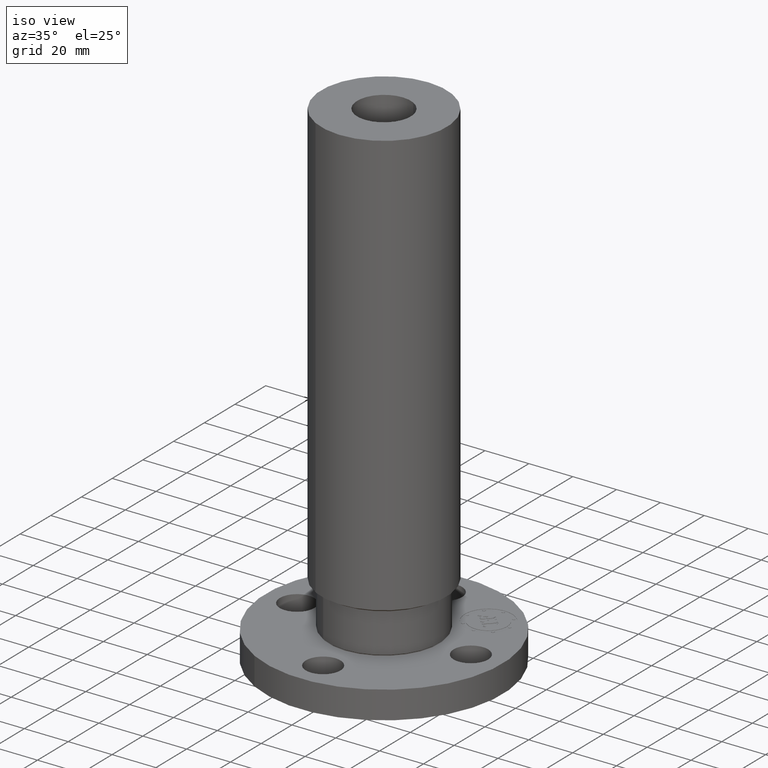
[diagram: clean part render]
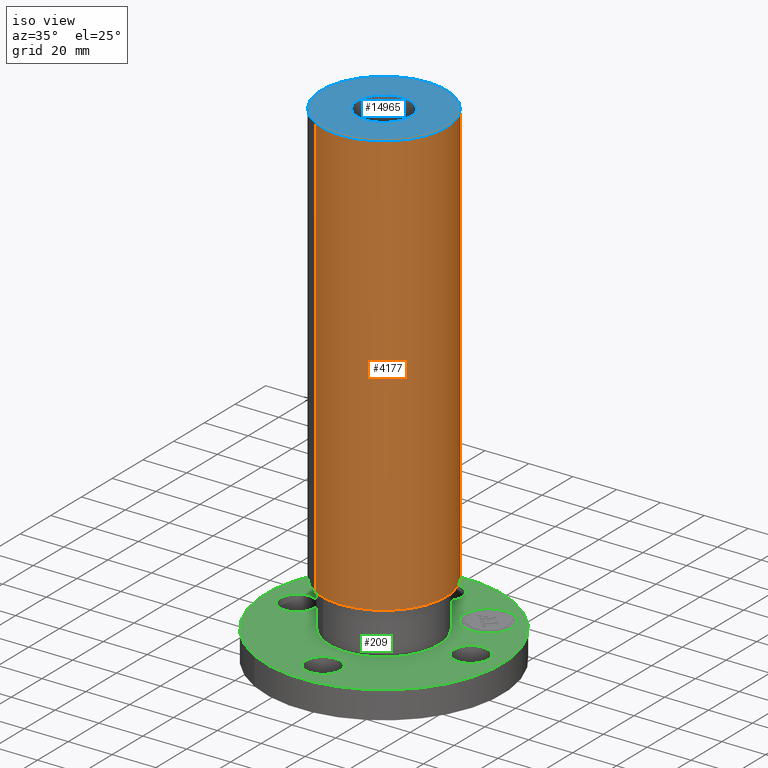
[diagram: same view with three faces highlighted in distinct colors, each labeled with its STEP entity id]
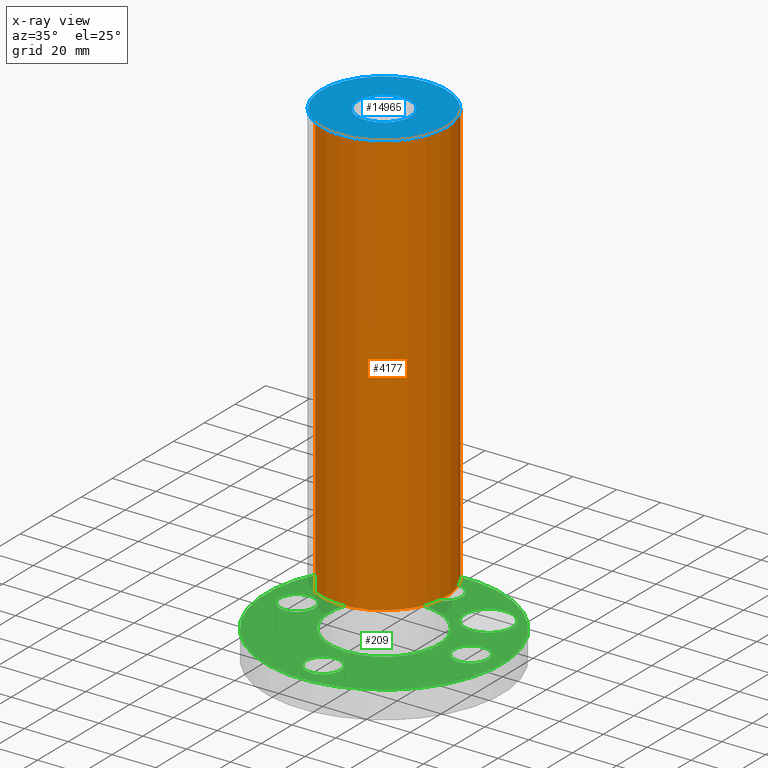
[diagram: x-ray of the same camera — body ghosted, the three highlighted faces saturated]
A machine part, iso view with three faces highlighted in distinct colors.
The next image is the same camera in x-ray (body ghosted, the three faces saturated) — at least one of them is partly hidden behind the body in this view.
Their STEP definitions:

[orange] entity #4177 — the highlighted cylindrical surface (partial cylindrical patch) has radius 28.575 mm, axis along (0, 0, -1).
#1275=AXIS2_PLACEMENT_3D('Circle Axis2P3D',#1273,#1274,$) ;
#4150=AXIS2_PLACEMENT_3D('Cylinder Axis2P3D',#4147,#4148,#4149) ;
#4161=AXIS2_PLACEMENT_3D('Circle Axis2P3D',#4159,#4160,$) ;
#1270=CARTESIAN_POINT('Vertex',(0.539353730932,0.987280382131,1.31966878365)) ;
#1273=CARTESIAN_POINT('Axis2P3D Location',(0.,0.,1.31966878365)) ;
#1277=CARTESIAN_POINT('Vertex',(-0.539353730932,-0.987280382131,1.31966878365)) ;
#4147=CARTESIAN_POINT('Axis2P3D Location',(0.,0.,4.43750000002)) ;
#4152=CARTESIAN_POINT('Line Origine',(0.539353730932,0.987280382131,5.12858439184)) ;
#4156=CARTESIAN_POINT('Vertex',(0.539353730932,0.987280382131,8.93750000004)) ;
#4159=CARTESIAN_POINT('Axis2P3D Location',(0.,0.,8.93750000004)) ;
#4163=CARTESIAN_POINT('Vertex',(-0.539353730932,-0.987280382131,8.93750000004)) ;
#4166=CARTESIAN_POINT('Line Origine',(-0.539353730932,-0.987280382131,5.12858439184)) ;
#1274=DIRECTION('Axis2P3D Direction',(-0.,0.,0.0393700787402)) ;
#4148=DIRECTION('Axis2P3D Direction',(0.,0.,-0.0393700787402)) ;
#4149=DIRECTION('Axis2P3D XDirection',(-0.0188750212049,-0.0345504945626,0.)) ;
#4153=DIRECTION('Vector Direction',(0.,0.,-0.0393700787402)) ;
#4160=DIRECTION('Axis2P3D Direction',(0.,0.,-0.0393700787402)) ;
#4167=DIRECTION('Vector Direction',(0.,0.,-0.0393700787402)) ;
#4154=VECTOR('Line Direction',#4153,0.0393700787402) ;
#4168=VECTOR('Line Direction',#4167,0.0393700787402) ;
#4172=ORIENTED_EDGE('',*,*,#1279,.F.) ;
#4173=ORIENTED_EDGE('',*,*,#4158,.T.) ;
#4174=ORIENTED_EDGE('',*,*,#4165,.T.) ;
#4175=ORIENTED_EDGE('',*,*,#4170,.F.) ;
#4177=ADVANCED_FACE('PartBody',(#4176),#4151,.T.) ;
#1276=CIRCLE('generated circle',#1275,1.125) ;
#4162=CIRCLE('generated circle',#4161,1.125) ;
#4151=CYLINDRICAL_SURFACE('generated cylinder',#4150,1.125) ;
#1279=EDGE_CURVE('',#1271,#1278,#1276,.F.) ;
#4158=EDGE_CURVE('',#1271,#4157,#4155,.F.) ;
#4165=EDGE_CURVE('',#4157,#4164,#4162,.T.) ;
#4170=EDGE_CURVE('',#1278,#4164,#4169,.F.) ;
#4171=EDGE_LOOP('',(#4172,#4173,#4174,#4175)) ;
#4176=FACE_OUTER_BOUND('',#4171,.T.) ;
#4155=LINE('Line',#4152,#4154) ;
#4169=LINE('Line',#4166,#4168) ;
#1271=VERTEX_POINT('',#1270) ;
#1278=VERTEX_POINT('',#1277) ;
#4157=VERTEX_POINT('',#4156) ;
#4164=VERTEX_POINT('',#4163) ;

[blue] entity #14965 — the highlighted planar face has unit normal (0, 0, -1).
#4161=AXIS2_PLACEMENT_3D('Circle Axis2P3D',#4159,#4160,$) ;
#4180=AXIS2_PLACEMENT_3D('Circle Axis2P3D',#4178,#4179,$) ;
#14941=AXIS2_PLACEMENT_3D('Plane Axis2P3D',#14938,#14939,#14940) ;
#14949=AXIS2_PLACEMENT_3D('Circle Axis2P3D',#14947,#14948,$) ;
#14958=AXIS2_PLACEMENT_3D('Circle Axis2P3D',#14956,#14957,$) ;
#4156=CARTESIAN_POINT('Vertex',(0.539353730932,0.987280382131,8.93750000004)) ;
#4159=CARTESIAN_POINT('Axis2P3D Location',(0.,0.,8.93750000004)) ;
#4163=CARTESIAN_POINT('Vertex',(-0.539353730932,-0.987280382131,8.93750000004)) ;
#4178=CARTESIAN_POINT('Axis2P3D Location',(0.,0.,8.93750000004)) ;
#14938=CARTESIAN_POINT('Axis2P3D Location',(0.,1.125,8.93750000004)) ;
#14947=CARTESIAN_POINT('Axis2P3D Location',(0.,0.,8.93750000004)) ;
#14951=CARTESIAN_POINT('Vertex',(-0.230124258531,-0.421239629709,8.93750000004)) ;
#14953=CARTESIAN_POINT('Vertex',(0.230124258531,0.421239629709,8.93750000004)) ;
#14956=CARTESIAN_POINT('Axis2P3D Location',(0.,0.,8.93750000004)) ;
#4160=DIRECTION('Axis2P3D Direction',(0.,0.,-0.0393700787402)) ;
#4179=DIRECTION('Axis2P3D Direction',(0.,0.,-0.0393700787402)) ;
#14939=DIRECTION('Axis2P3D Direction',(0.,0.,-0.0393700787402)) ;
#14940=DIRECTION('Axis2P3D XDirection',(0.0393700787402,0.,0.)) ;
#14948=DIRECTION('Axis2P3D Direction',(0.,0.,-0.0393700787402)) ;
#14957=DIRECTION('Axis2P3D Direction',(0.,0.,-0.0393700787402)) ;
#14944=ORIENTED_EDGE('',*,*,#4165,.F.) ;
#14945=ORIENTED_EDGE('',*,*,#4182,.F.) ;
#14962=ORIENTED_EDGE('',*,*,#14955,.T.) ;
#14963=ORIENTED_EDGE('',*,*,#14960,.T.) ;
#14964=FACE_BOUND('',#14961,.T.) ;
#14965=ADVANCED_FACE('PartBody',(#14946,#14964),#14942,.F.) ;
#4162=CIRCLE('generated circle',#4161,1.125) ;
#4181=CIRCLE('generated circle',#4180,1.125) ;
#14950=CIRCLE('generated circle',#14949,0.480000000002) ;
#14959=CIRCLE('generated circle',#14958,0.480000000002) ;
#4165=EDGE_CURVE('',#4157,#4164,#4162,.T.) ;
#4182=EDGE_CURVE('',#4164,#4157,#4181,.T.) ;
#14955=EDGE_CURVE('',#14952,#14954,#14950,.T.) ;
#14960=EDGE_CURVE('',#14954,#14952,#14959,.T.) ;
#14943=EDGE_LOOP('',(#14944,#14945)) ;
#14961=EDGE_LOOP('',(#14962,#14963)) ;
#14946=FACE_OUTER_BOUND('',#14943,.T.) ;
#14942=PLANE('',#14941) ;
#4157=VERTEX_POINT('',#4156) ;
#4164=VERTEX_POINT('',#4163) ;
#14952=VERTEX_POINT('',#14951) ;
#14954=VERTEX_POINT('',#14953) ;

[green] entity #209 — the highlighted planar face has unit normal (0, 0, -1).
#51=AXIS2_PLACEMENT_3D('Circle Axis2P3D',#49,#50,$) ;
#77=AXIS2_PLACEMENT_3D('Circle Axis2P3D',#75,#76,$) ;
#95=AXIS2_PLACEMENT_3D('Plane Axis2P3D',#92,#93,#94) ;
#99=AXIS2_PLACEMENT_3D('Circle Axis2P3D',#97,#98,$) ;
#108=AXIS2_PLACEMENT_3D('Circle Axis2P3D',#106,#107,$) ;
#121=AXIS2_PLACEMENT_3D('Circle Axis2P3D',#119,#120,$) ;
#130=AXIS2_PLACEMENT_3D('Circle Axis2P3D',#128,#129,$) ;
#139=AXIS2_PLACEMENT_3D('Circle Axis2P3D',#137,#138,$) ;
#148=AXIS2_PLACEMENT_3D('Circle Axis2P3D',#146,#147,$) ;
#157=AXIS2_PLACEMENT_3D('Circle Axis2P3D',#155,#156,$) ;
#166=AXIS2_PLACEMENT_3D('Circle Axis2P3D',#164,#165,$) ;
#175=AXIS2_PLACEMENT_3D('Circle Axis2P3D',#173,#174,$) ;
#184=AXIS2_PLACEMENT_3D('Circle Axis2P3D',#182,#183,$) ;
#193=AXIS2_PLACEMENT_3D('Circle Axis2P3D',#191,#192,$) ;
#202=AXIS2_PLACEMENT_3D('Circle Axis2P3D',#200,#201,$) ;
#44=CARTESIAN_POINT('Vertex',(1.28794940582,-0.148621916968,0.497500000002)) ;
#49=CARTESIAN_POINT('Axis2P3D Location',(1.56000000001,0.,0.497500000002)) ;
#53=CARTESIAN_POINT('Vertex',(1.83205059419,0.148621916968,0.497500000002)) ;
#75=CARTESIAN_POINT('Axis2P3D Location',(1.56000000001,0.,0.497500000002)) ;
#92=CARTESIAN_POINT('Axis2P3D Location',(0.,2.12500000001,0.497500000002)) ;
#97=CARTESIAN_POINT('Axis2P3D Location',(0.,0.,0.497500000002)) ;
#101=CARTESIAN_POINT('Vertex',(1.01877926954,1.86486294402,0.497500000002)) ;
#103=CARTESIAN_POINT('Vertex',(-1.01877926954,-1.86486294402,0.497500000002)) ;
#106=CARTESIAN_POINT('Axis2P3D Location',(0.,0.,0.497500000002)) ;
#119=CARTESIAN_POINT('Axis2P3D Location',(0.,0.,0.497500000002)) ;
#123=CARTESIAN_POINT('Vertex',(-0.472234155527,-0.864418823465,0.497500000002)) ;
#125=CARTESIAN_POINT('Vertex',(0.472234155527,0.864418823465,0.497500000002)) ;
#128=CARTESIAN_POINT('Axis2P3D Location',(0.,0.,0.497500000002)) ;
#137=CARTESIAN_POINT('Axis2P3D Location',(3.49676543189E-017,-1.56000000001,0.497500000002)) ;
#141=CARTESIAN_POINT('Vertex',(-0.148621916968,-1.28794940582,0.497500000002)) ;
#143=CARTESIAN_POINT('Vertex',(0.148621916968,-1.83205059419,0.497500000002)) ;
#146=CARTESIAN_POINT('Axis2P3D Location',(-2.09805925913E-016,-1.56000000001,0.497500000002)) ;
#155=CARTESIAN_POINT('Axis2P3D Location',(-1.56000000001,0.,0.497500000002)) ;
#159=CARTESIAN_POINT('Vertex',(-1.28794940582,0.148621916968,0.497500000002)) ;
#161=CARTESIAN_POINT('Vertex',(-1.83205059419,-0.148621916968,0.497500000002)) ;
#164=CARTESIAN_POINT('Axis2P3D Location',(-1.56000000001,-2.79741234551E-016,0.497500000002)) ;
#173=CARTESIAN_POINT('Axis2P3D Location',(-3.84644197508E-016,1.56000000001,0.497500000002)) ;
#177=CARTESIAN_POINT('Vertex',(0.148621916968,1.28794940582,0.497500000002)) ;
#179=CARTESIAN_POINT('Vertex',(-0.148621916968,1.83205059419,0.497500000002)) ;
#182=CARTESIAN_POINT('Axis2P3D Location',(-2.79741234551E-016,1.56000000001,0.497500000002)) ;
#191=CARTESIAN_POINT('Axis2P3D Location',(1.10308657866,1.10308657866,0.497500000002)) ;
#195=CARTESIAN_POINT('Vertex',(1.40360695766,0.802566199655,0.497500000002)) ;
#197=CARTESIAN_POINT('Vertex',(0.802566199655,1.40360695766,0.497500000002)) ;
#200=CARTESIAN_POINT('Axis2P3D Location',(1.10308657866,1.10308657866,0.497500000002)) ;
#50=DIRECTION('Axis2P3D Direction',(0.,-0.,0.0393700787402)) ;
#76=DIRECTION('Axis2P3D Direction',(0.,-0.,0.0393700787402)) ;
#93=DIRECTION('Axis2P3D Direction',(0.,0.,-0.0393700787402)) ;
#94=DIRECTION('Axis2P3D XDirection',(0.0393700787402,0.,0.)) ;
#98=DIRECTION('Axis2P3D Direction',(0.,0.,-0.0393700787402)) ;
#107=DIRECTION('Axis2P3D Direction',(0.,0.,-0.0393700787402)) ;
#120=DIRECTION('Axis2P3D Direction',(0.,0.,-0.0393700787402)) ;
#129=DIRECTION('Axis2P3D Direction',(0.,0.,-0.0393700787402)) ;
#138=DIRECTION('Axis2P3D Direction',(0.,0.,-0.0393700787402)) ;
#147=DIRECTION('Axis2P3D Direction',(0.,0.,-0.0393700787402)) ;
#156=DIRECTION('Axis2P3D Direction',(0.,0.,-0.0393700787402)) ;
#165=DIRECTION('Axis2P3D Direction',(0.,0.,-0.0393700787402)) ;
#174=DIRECTION('Axis2P3D Direction',(0.,0.,-0.0393700787402)) ;
#183=DIRECTION('Axis2P3D Direction',(0.,0.,-0.0393700787402)) ;
#192=DIRECTION('Axis2P3D Direction',(0.,0.,-0.0393700787402)) ;
#201=DIRECTION('Axis2P3D Direction',(0.,0.,-0.0393700787402)) ;
#112=ORIENTED_EDGE('',*,*,#105,.F.) ;
#113=ORIENTED_EDGE('',*,*,#110,.F.) ;
#116=ORIENTED_EDGE('',*,*,#55,.T.) ;
#117=ORIENTED_EDGE('',*,*,#79,.T.) ;
#134=ORIENTED_EDGE('',*,*,#127,.T.) ;
#135=ORIENTED_EDGE('',*,*,#132,.T.) ;
#152=ORIENTED_EDGE('',*,*,#145,.T.) ;
#153=ORIENTED_EDGE('',*,*,#150,.T.) ;
#170=ORIENTED_EDGE('',*,*,#163,.T.) ;
#171=ORIENTED_EDGE('',*,*,#168,.T.) ;
#188=ORIENTED_EDGE('',*,*,#181,.T.) ;
#189=ORIENTED_EDGE('',*,*,#186,.T.) ;
#206=ORIENTED_EDGE('',*,*,#199,.F.) ;
#207=ORIENTED_EDGE('',*,*,#204,.F.) ;
#118=FACE_BOUND('',#115,.T.) ;
#136=FACE_BOUND('',#133,.T.) ;
#154=FACE_BOUND('',#151,.T.) ;
#172=FACE_BOUND('',#169,.T.) ;
#190=FACE_BOUND('',#187,.T.) ;
#208=FACE_BOUND('',#205,.T.) ;
#209=ADVANCED_FACE('PartBody',(#114,#118,#136,#154,#172,#190,#208),#96,.F.) ;
#52=CIRCLE('generated circle',#51,0.310000000001) ;
#78=CIRCLE('generated circle',#77,0.310000000001) ;
#100=CIRCLE('generated circle',#99,2.12500000001) ;
#109=CIRCLE('generated circle',#108,2.12500000001) ;
#122=CIRCLE('generated circle',#121,0.985000000004) ;
#131=CIRCLE('generated circle',#130,0.985000000004) ;
#140=CIRCLE('generated circle',#139,0.310000000001) ;
#149=CIRCLE('generated circle',#148,0.310000000001) ;
#158=CIRCLE('generated circle',#157,0.310000000001) ;
#167=CIRCLE('generated circle',#166,0.310000000001) ;
#176=CIRCLE('generated circle',#175,0.310000000001) ;
#185=CIRCLE('generated circle',#184,0.310000000001) ;
#194=CIRCLE('generated circle',#193,0.424999995752) ;
#203=CIRCLE('generated circle',#202,0.424999995752) ;
#55=EDGE_CURVE('',#54,#45,#52,.F.) ;
#79=EDGE_CURVE('',#45,#54,#78,.F.) ;
#105=EDGE_CURVE('',#102,#104,#100,.T.) ;
#110=EDGE_CURVE('',#104,#102,#109,.T.) ;
#127=EDGE_CURVE('',#124,#126,#122,.T.) ;
#132=EDGE_CURVE('',#126,#124,#131,.T.) ;
#145=EDGE_CURVE('',#142,#144,#140,.T.) ;
#150=EDGE_CURVE('',#144,#142,#149,.T.) ;
#163=EDGE_CURVE('',#160,#162,#158,.T.) ;
#168=EDGE_CURVE('',#162,#160,#167,.T.) ;
#181=EDGE_CURVE('',#178,#180,#176,.T.) ;
#186=EDGE_CURVE('',#180,#178,#185,.T.) ;
#199=EDGE_CURVE('',#196,#198,#194,.F.) ;
#204=EDGE_CURVE('',#198,#196,#203,.F.) ;
#111=EDGE_LOOP('',(#112,#113)) ;
#115=EDGE_LOOP('',(#116,#117)) ;
#133=EDGE_LOOP('',(#134,#135)) ;
#151=EDGE_LOOP('',(#152,#153)) ;
#169=EDGE_LOOP('',(#170,#171)) ;
#187=EDGE_LOOP('',(#188,#189)) ;
#205=EDGE_LOOP('',(#206,#207)) ;
#114=FACE_OUTER_BOUND('',#111,.T.) ;
#96=PLANE('',#95) ;
#45=VERTEX_POINT('',#44) ;
#54=VERTEX_POINT('',#53) ;
#102=VERTEX_POINT('',#101) ;
#104=VERTEX_POINT('',#103) ;
#124=VERTEX_POINT('',#123) ;
#126=VERTEX_POINT('',#125) ;
#142=VERTEX_POINT('',#141) ;
#144=VERTEX_POINT('',#143) ;
#160=VERTEX_POINT('',#159) ;
#162=VERTEX_POINT('',#161) ;
#178=VERTEX_POINT('',#177) ;
#180=VERTEX_POINT('',#179) ;
#196=VERTEX_POINT('',#195) ;
#198=VERTEX_POINT('',#197) ;